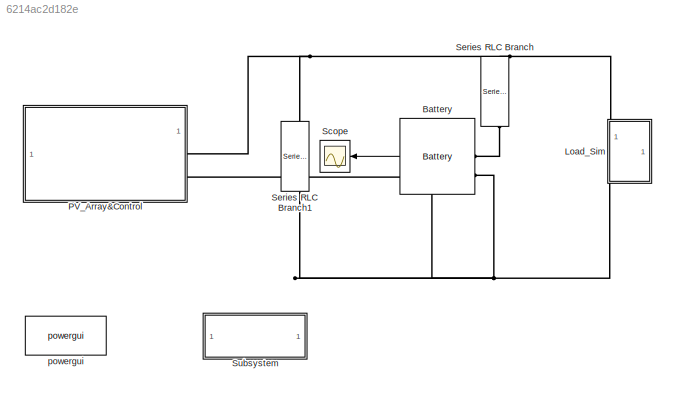
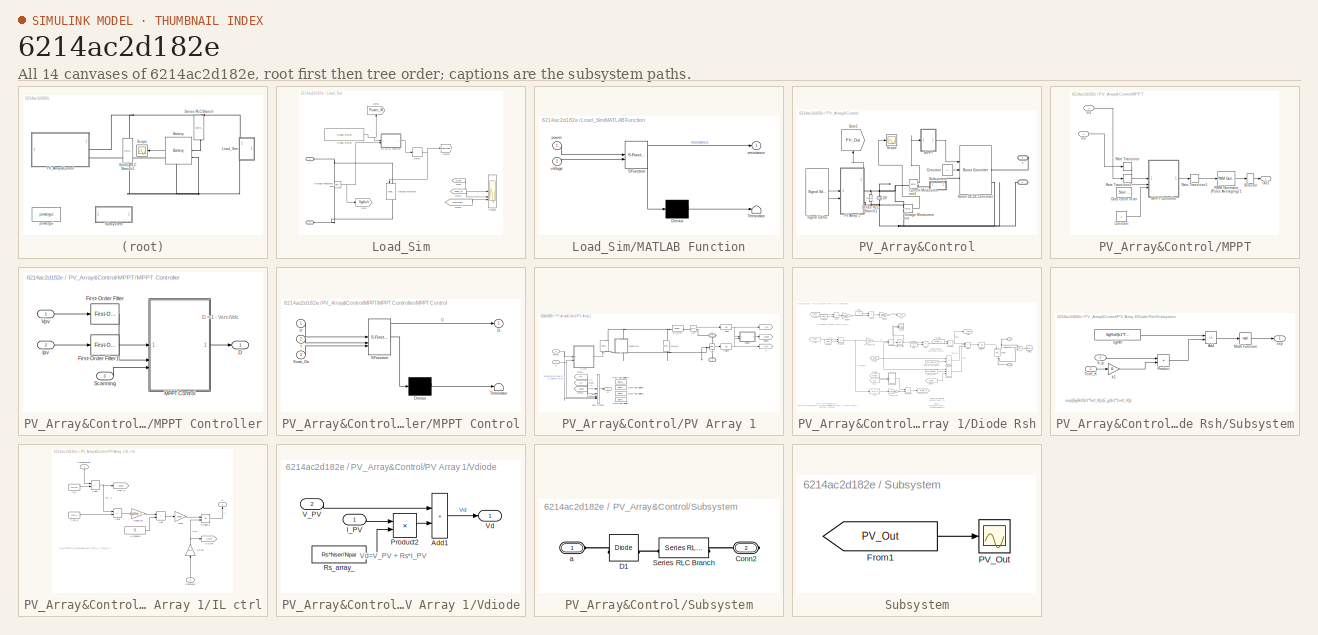
[diagram: thumbnail index - all 14 canvases of the model, root first then tree order]
MODEL slx_6214ac2d182e
KIND model
CONFIG AbsTol = auto
CONFIG EnableMultiTasking = off
CONFIG FixedStep = auto
CONFIG MaxStep = 1e-2
CONFIG MinStep = auto
CONFIG RelTol = 1e-3
CONFIG SampleTimeConstraint = Unconstrained
CONFIG SolverName = VariableStepDiscrete
CONFIG StartTime = 0.0
CONFIG StopTime = 72
BLOCK [Reference] Battery  REF=spsBatteryLib/Battery
  LibrarySourceBlock = sps_lib/Sources/Battery
  SourceBlock = spsBatteryLib/Battery
  SourceType = Battery
BLOCK [SubSystem] Load_Sim
BLOCK [PMIOPort] Load_Sim/+
  Side = Left
BLOCK [PMIOPort] Load_Sim/-  
  Port = 2
  Side = Left
BLOCK [Delay] Load_Sim/Delay
  DelayLength = 1
  InputPortMap = u0
  InputProcessing = Columns as channels (frame based)
BLOCK [From] Load_Sim/From
  GotoTag = SysVolt
BLOCK [From] Load_Sim/From1
  GotoTag = Power_W
BLOCK [From] Load_Sim/From2
  GotoTag = Resistance_Load
BLOCK [Goto] Load_Sim/Goto
  GotoTag = SysVolt
BLOCK [Goto] Load_Sim/Goto1
  GotoTag = Power_W
  NameLocation = right
BLOCK [Goto] Load_Sim/Goto2
  GotoTag = Resistance_Load
BLOCK [SubSystem] Load_Sim/MATLAB Function
  ErrorFcn = Stateflow.Translate.translate
  PermitHierarchicalResolution = ExplicitOnly
  SFBlockType = MATLAB Function
  TreatAsAtomicUnit = on
BLOCK [Demux] Load_Sim/MATLAB Function/ Demux 
  Outputs = 1
BLOCK [S-Function] Load_Sim/MATLAB Function/ SFunction 
  EnableBusSupport = on
  FunctionName = sf_sfun
  PortCounts = [2 2]
  SFcnIsStateOwnerBlock = off
  SFunctionDeploymentMode = off
  Tag = Stateflow S-Function 3
BLOCK [Terminator] Load_Sim/MATLAB Function/ Terminator 
BLOCK [Inport] Load_Sim/MATLAB Function/power
BLOCK [Outport] Load_Sim/MATLAB Function/resistance
BLOCK [Inport] Load_Sim/MATLAB Function/voltage
  Port = 2
BLOCK [Scope] Load_Sim/Scope3
  Floating = off
  NumInputPorts = 3
  ScopeSpecificationString = Simulink.scopes.TimeScopeBlockCfg('CurrentConfiguration', extmgr.ConfigurationSet(extmgr.Configuration('Core','General UI',true),extmgr.Configuration('Core','Source UI',true),extmgr.Configuration('Sources','WiredSimulink',true,'DataLoggingVariableName','ScopeData4'),extmgr.Configuration('Visuals','Time Domain',true,'SerializedDisplays',{struct('MinYLimReal','-3666.66667','MaxYLimReal','33000.00000...<+1578ch>
BLOCK [Reference] Load_Sim/Signal Editor  REF=SignalEditorBlockLib/Signal Editor
  LibrarySourceBlock = simulink/Sources/Signal Editor
  SourceBlock = SignalEditorBlockLib/Signal Editor
  SourceType = SignalEditor
  UserDataPersistent = on
BLOCK [Reference] Load_Sim/Variable Resistor  REF=spsVariableResistorLib/Variable Resistor
  LibrarySourceBlock = sps_lib/Passives/Variable Resistor
  NameLocation = left
  SourceBlock = spsVariableResistorLib/Variable Resistor
  SourceType = Variable Resistor
BLOCK [Reference] Load_Sim/Voltage Measurement  REF=spsVoltageMeasurementLib/Voltage Measurement
  SourceBlock = spsVoltageMeasurementLib/Voltage Measurement
  SourceType = Voltage Measurement
  UserDataPersistent = on
BLOCK [SubSystem] PV_Array&Control
BLOCK [PMIOPort] PV_Array&Control/+
  Side = Right
BLOCK [PMIOPort] PV_Array&Control/-
  Port = 2
  Side = Right
BLOCK [Reference] PV_Array&Control/Boost DC-DC Converter  REF=spsBoostConverterLib/Boost Converter
  Commented = on
  SourceBlock = spsBoostConverterLib/Boost Converter
  SourceType = Boost Converter
BLOCK [Constant] PV_Array&Control/Constant
  Commented = on
  Value = 0
BLOCK [Reference] PV_Array&Control/Current Measurement1  REF=spsCurrentMeasurementLib/Current Measurement
  Commented = on
  SourceBlock = spsCurrentMeasurementLib/Current Measurement
  SourceType = Current Measurement
  UserDataPersistent = on
BLOCK [Reference] PV_Array&Control/D3  REF=spsDiodeLib/Diode
  NameLocation = left
  SourceBlock = spsDiodeLib/Diode
  SourceType = Diode
BLOCK [Goto] PV_Array&Control/Goto1
  GotoTag = PV_Out
  NameLocation = right
  TagVisibility = global
BLOCK [SubSystem] PV_Array&Control/MPPT
  Commented = on
BLOCK [Constant] PV_Array&Control/MPPT/Constant
BLOCK [Reference] PV_Array&Control/MPPT/Duty cycle scan  REF=spsStairGeneratorLib/Stair
Generator
  SourceBlock = spsStairGeneratorLib/Stair\nGenerator
  SourceType = Stair Generator
BLOCK [Inport] PV_Array&Control/MPPT/In1
BLOCK [Inport] PV_Array&Control/MPPT/In2
  Port = 2
BLOCK [SubSystem] PV_Array&Control/MPPT/MPPT Controller
BLOCK [Outport] PV_Array&Control/MPPT/MPPT Controller/D
  OutDataTypeStr = double
  PortDimensions = 1
  VectorParamsAs1DForOutWhenUnconnected = off
BLOCK [Reference] PV_Array&Control/MPPT/MPPT Controller/First-Order Filter  REF=spsFirstOrderFilterLib/First-Order
Filter
  SourceBlock = spsFirstOrderFilterLib/First-Order\nFilter
  SourceType = First-Order Filter
BLOCK [Reference] PV_Array&Control/MPPT/MPPT Controller/First-Order Filter1  REF=spsFirstOrderFilterLib/First-Order
Filter
  SourceBlock = spsFirstOrderFilterLib/First-Order\nFilter
  SourceType = First-Order Filter
BLOCK [Inport] PV_Array&Control/MPPT/MPPT Controller/Ipv
  Port = 2
BLOCK [SubSystem] PV_Array&Control/MPPT/MPPT Controller/MPPT Control
  ErrorFcn = Stateflow.Translate.translate
  NameLocation = top
  PermitHierarchicalResolution = ExplicitOnly
  SFBlockType = MATLAB Function
  TreatAsAtomicUnit = on
BLOCK [Demux] PV_Array&Control/MPPT/MPPT Controller/MPPT Control/ Demux 
  Outputs = 1
BLOCK [S-Function] PV_Array&Control/MPPT/MPPT Controller/MPPT Control/ SFunction 
  EnableBusSupport = on
  FunctionName = sf_sfun
  Parameters = DeltaD_Scan,Dinit,Dmax,Dmin,deltaD
  PortCounts = [3 2]
  SFcnIsStateOwnerBlock = off
  SFunctionDeploymentMode = off
  Tag = Stateflow S-Function 2
BLOCK [Terminator] PV_Array&Control/MPPT/MPPT Controller/MPPT Control/ Terminator 
BLOCK [Outport] PV_Array&Control/MPPT/MPPT Controller/MPPT Control/D
  VectorParamsAs1DForOutWhenUnconnected = off
BLOCK [Inport] PV_Array&Control/MPPT/MPPT Controller/MPPT Control/I
  Port = 2
BLOCK [Inport] PV_Array&Control/MPPT/MPPT Controller/MPPT Control/Scan_On
  Port = 3
BLOCK [Inport] PV_Array&Control/MPPT/MPPT Controller/MPPT Control/V
BLOCK [Inport] PV_Array&Control/MPPT/MPPT Controller/Scanning
  Port = 3
  PortDimensions = 1
BLOCK [Inport] PV_Array&Control/MPPT/MPPT Controller/Vpv
BLOCK [Outport] PV_Array&Control/MPPT/Out1
BLOCK [Reference] PV_Array&Control/MPPT/PWM Generator (Pulse Averaging) 1  REF=spsPWMGeneratorPulseAveragingLib/PWM Generator
(Pulse Averaging)
  SourceBlock = spsPWMGeneratorPulseAveragingLib/PWM Generator\n(Pulse Averaging)
  SourceType = PWM Generator Pulse Averaging
BLOCK [RateTransition] PV_Array&Control/MPPT/Rate Transition
  OutPortSampleTime = 2.5e-05
BLOCK [RateTransition] PV_Array&Control/MPPT/Rate Transition1
  OutPortSampleTime = 5e-06
BLOCK [RateTransition] PV_Array&Control/MPPT/Rate Transition2
  OutPortSampleTime = 2.5e-05
BLOCK [Selector] PV_Array&Control/MPPT/Selector
  IndexOptions = Index vector (dialog)
  Indices = 1
  InputPortWidth = 2
  OutputSizes = 1
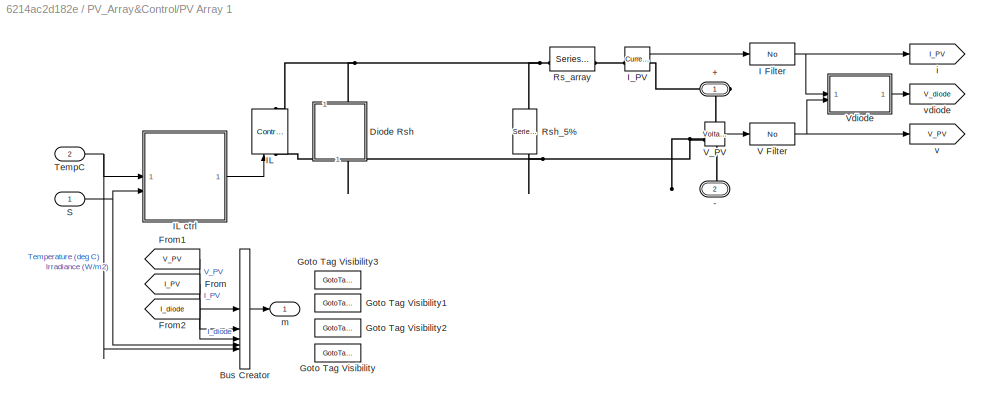
BLOCK [SubSystem] PV_Array&Control/PV Array 1
  AncestorBlock = spsPVArrayLib/PV Array
  CloseFcn = sps_rtmsupport('CloseFcn',gcbh);
  CopyFcn = sps_rtmsupport('CopyFcn',gcbh);
  DeleteFcn = sps_rtmsupport('DeleteFcn',gcbh);
  DialogController = POWERSYS.PowerSysDialog
  LoadFcn = sps_rtmsupport('LoadFcn',gcbh);
  ModelCloseFcn = sps_rtmsupport('ModelCloseFcn',gcbh);
  NameChangeFcn = sps_rtmsupport('NameChangeFcn',gcbh);
  OpenFcn = %assignin('base','PVMaskOpening',1);\n%open_system(gcb,'mask')\n%assignin('base','PVMaskOpening',0);\nsps_rtmsupport('OpenFcn',gcbh, [3 6 7 23]);
  PostSaveFcn = sps_rtmsupport('PostSaveFcn',gcbh);
  PreCopyFcn = sps_rtmsupport('PreCopyFcn',gcbh);
  PreDeleteFcn = sps_rtmsupport('PreDeleteFcn',gcbh);
  PreSaveFcn = sps_rtmsupport('PreSaveFcn',gcbh);
  StartFcn = sps_rtmsupport('StartFcn',gcbh);
  StopFcn = sps_rtmsupport('StopFcn',gcbh);
  UndoDeleteFcn = sps_rtmsupport('UndoDeleteFcn',gcbh);
BLOCK [PMIOPort] PV_Array&Control/PV Array 1/+
  Side = Right
BLOCK [PMIOPort] PV_Array&Control/PV Array 1/-
  Port = 2
  Side = Right
BLOCK [BusCreator] PV_Array&Control/PV Array 1/Bus Creator
  DisplayOption = bar
  InheritFromInputs = on
  Inputs = 5
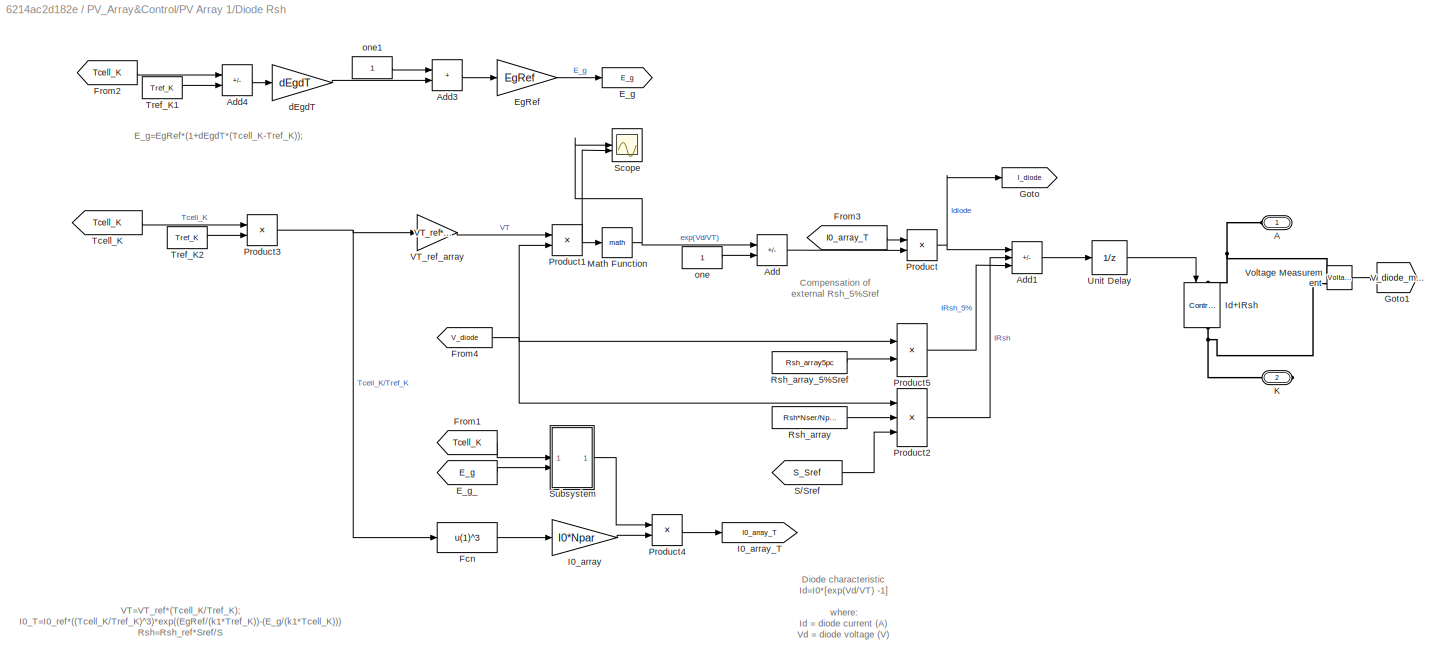
BLOCK [SubSystem] PV_Array&Control/PV Array 1/Diode Rsh
  AncestorBlock = spsPVarrayModel/Discrete Diode Rsh BAL
  NameLocation = right
BLOCK [PMIOPort] PV_Array&Control/PV Array 1/Diode Rsh/A
  Side = Left
BLOCK [Sum] PV_Array&Control/PV Array 1/Diode Rsh/Add
  IconShape = rectangular
  Inputs = +-
BLOCK [Sum] PV_Array&Control/PV Array 1/Diode Rsh/Add1
  IconShape = rectangular
  Inputs = ++-
BLOCK [Sum] PV_Array&Control/PV Array 1/Diode Rsh/Add3
  IconShape = rectangular
BLOCK [Sum] PV_Array&Control/PV Array 1/Diode Rsh/Add4
  IconShape = rectangular
  Inputs = +-
BLOCK [Goto] PV_Array&Control/PV Array 1/Diode Rsh/E_g
  GotoTag = E_g
BLOCK [From] PV_Array&Control/PV Array 1/Diode Rsh/E_g_
  GotoTag = E_g
BLOCK [Gain] PV_Array&Control/PV Array 1/Diode Rsh/EgRef
  Gain = EgRef
BLOCK [Fcn] PV_Array&Control/PV Array 1/Diode Rsh/Fcn
  Expr = u(1)^3
BLOCK [From] PV_Array&Control/PV Array 1/Diode Rsh/From1
  GotoTag = Tcell_K
  TagVisibility = scoped
BLOCK [From] PV_Array&Control/PV Array 1/Diode Rsh/From2
  GotoTag = Tcell_K
  TagVisibility = scoped
BLOCK [From] PV_Array&Control/PV Array 1/Diode Rsh/From3
  GotoTag = I0_array_T
BLOCK [From] PV_Array&Control/PV Array 1/Diode Rsh/From4
  GotoTag = V_diode
  TagVisibility = scoped
BLOCK [Goto] PV_Array&Control/PV Array 1/Diode Rsh/Goto
  GotoTag = I_diode
  TagVisibility = scoped
BLOCK [Goto] PV_Array&Control/PV Array 1/Diode Rsh/Goto1
  GotoTag = V_diode_manual
  TagVisibility = global
BLOCK [Gain] PV_Array&Control/PV Array 1/Diode Rsh/I0_array
  Gain = I0*Npar
BLOCK [Goto] PV_Array&Control/PV Array 1/Diode Rsh/I0_array_T
  GotoTag = I0_array_T
BLOCK [Reference] PV_Array&Control/PV Array 1/Diode Rsh/Id+IRsh  REF=spsControlledCurrentSourceLib/Controlled Current Source
  NameLocation = right
  SourceBlock = spsControlledCurrentSourceLib/Controlled Current Source
  SourceType = Controlled Current Source
BLOCK [PMIOPort] PV_Array&Control/PV Array 1/Diode Rsh/K
  Port = 2
  Side = Right
BLOCK [Math] PV_Array&Control/PV Array 1/Diode Rsh/Math Function
  SignedPower = on
BLOCK [Product] PV_Array&Control/PV Array 1/Diode Rsh/Product
  RndMeth = Zero
BLOCK [Product] PV_Array&Control/PV Array 1/Diode Rsh/Product1
  Inputs = /*
  RndMeth = Zero
BLOCK [Product] PV_Array&Control/PV Array 1/Diode Rsh/Product2
  Inputs = */*
  RndMeth = Zero
BLOCK [Product] PV_Array&Control/PV Array 1/Diode Rsh/Product3
  Inputs = */
  RndMeth = Zero
BLOCK [Product] PV_Array&Control/PV Array 1/Diode Rsh/Product4
  Inputs = **
  RndMeth = Zero
BLOCK [Product] PV_Array&Control/PV Array 1/Diode Rsh/Product5
  Inputs = */
  RndMeth = Zero
BLOCK [Constant] PV_Array&Control/PV Array 1/Diode Rsh/Rsh_array
  Value = Rsh*Nser/Npar
BLOCK [Constant] PV_Array&Control/PV Array 1/Diode Rsh/Rsh_array_5%Sref
  Value = Rsh_array5pc
BLOCK [From] PV_Array&Control/PV Array 1/Diode Rsh/S//Sref
  GotoTag = S_Sref
  TagVisibility = scoped
BLOCK [Scope] PV_Array&Control/PV Array 1/Diode Rsh/Scope
  Floating = off
  NumInputPorts = 2
  ScopeSpecificationString = Simulink.scopes.TimeScopeBlockCfg('CurrentConfiguration', extmgr.ConfigurationSet(extmgr.Configuration('Core','General UI',true),extmgr.Configuration('Core','Source UI',true),extmgr.Configuration('Sources','WiredSimulink',true,'DataLoggingVariableName','ScopeData4'),extmgr.Configuration('Visuals','Time Domain',true,'SerializedDisplays',{struct('MinYLimReal','0.01835','MaxYLimReal','1.29558','YLabe...<+1450ch>
BLOCK [SubSystem] PV_Array&Control/PV Array 1/Diode Rsh/Subsystem
BLOCK [Sum] PV_Array&Control/PV Array 1/Diode Rsh/Subsystem/Add
  IconShape = rectangular
  Inputs = +-
BLOCK [Inport] PV_Array&Control/PV Array 1/Diode Rsh/Subsystem/E_g
  Port = 2
BLOCK [Constant] PV_Array&Control/PV Array 1/Diode Rsh/Subsystem/EgRef
  Value = EgRef/(k1*Tref_K)
BLOCK [Math] PV_Array&Control/PV Array 1/Diode Rsh/Subsystem/Math Function
  SignedPower = on
BLOCK [Product] PV_Array&Control/PV Array 1/Diode Rsh/Subsystem/Product
  Inputs = */
BLOCK [Inport] PV_Array&Control/PV Array 1/Diode Rsh/Subsystem/Tcell_K
BLOCK [Outport] PV_Array&Control/PV Array 1/Diode Rsh/Subsystem/exp
  VectorParamsAs1DForOutWhenUnconnected = off
BLOCK [Gain] PV_Array&Control/PV Array 1/Diode Rsh/Subsystem/k1
  Gain = k1
BLOCK [From] PV_Array&Control/PV Array 1/Diode Rsh/Tcell_K
  GotoTag = Tcell_K
  TagVisibility = scoped
BLOCK [Constant] PV_Array&Control/PV Array 1/Diode Rsh/Tref_K1
  Value = Tref_K
BLOCK [Constant] PV_Array&Control/PV Array 1/Diode Rsh/Tref_K2
  Value = Tref_K
BLOCK [UnitDelay] PV_Array&Control/PV Array 1/Diode Rsh/Unit Delay
  HasFrameUpgradeWarning = on
  SampleTime = Tsf
BLOCK [Gain] PV_Array&Control/PV Array 1/Diode Rsh/VT_ref_array
  Gain = VT_ref*Nser
BLOCK [Reference] PV_Array&Control/PV Array 1/Diode Rsh/Voltage Measurement  REF=spsVoltageMeasurementLib/Voltage Measurement
  LibrarySourceBlock = sps_lib/Sensors and Measurements/Voltage Measurement
  SourceBlock = spsVoltageMeasurementLib/Voltage Measurement
  SourceType = Voltage Measurement
  UserDataPersistent = on
BLOCK [Gain] PV_Array&Control/PV Array 1/Diode Rsh/dEgdT
  Gain = dEgdT
BLOCK [Constant] PV_Array&Control/PV Array 1/Diode Rsh/one
BLOCK [Constant] PV_Array&Control/PV Array 1/Diode Rsh/one1
BLOCK [From] PV_Array&Control/PV Array 1/From
  GotoTag = I_PV
BLOCK [From] PV_Array&Control/PV Array 1/From1
  GotoTag = V_PV
BLOCK [From] PV_Array&Control/PV Array 1/From2
  GotoTag = I_diode
  TagVisibility = scoped
BLOCK [GotoTagVisibility] PV_Array&Control/PV Array 1/Goto Tag Visibility
  GotoTag = S_Sref
BLOCK [GotoTagVisibility] PV_Array&Control/PV Array 1/Goto Tag Visibility1
  GotoTag = I_diode
BLOCK [GotoTagVisibility] PV_Array&Control/PV Array 1/Goto Tag Visibility2
  GotoTag = Tcell_K
BLOCK [GotoTagVisibility] PV_Array&Control/PV Array 1/Goto Tag Visibility3
  GotoTag = V_diode
BLOCK [Reference] PV_Array&Control/PV Array 1/I Filter  REF=spsPVarrayModel/No
  NameLocation = top
  SourceBlock = spsPVarrayModel/No
  SourceType = SubSystem
BLOCK [Reference] PV_Array&Control/PV Array 1/IL  REF=spsControlledCurrentSourceLib/Controlled Current Source
  NameLocation = left
  SourceBlock = spsControlledCurrentSourceLib/Controlled Current Source
  SourceType = Controlled Current Source
BLOCK [SubSystem] PV_Array&Control/PV Array 1/IL ctrl
BLOCK [Constant] PV_Array&Control/PV Array 1/IL ctrl/0_K
  Value = 273.15
BLOCK [Gain] PV_Array&Control/PV Array 1/IL ctrl/1//Sref
  Gain = 1e-3
  NameLocation = right
BLOCK [Sum] PV_Array&Control/PV Array 1/IL ctrl/Add
  IconShape = rectangular
BLOCK [Sum] PV_Array&Control/PV Array 1/IL ctrl/Add2
  IconShape = rectangular
BLOCK [Sum] PV_Array&Control/PV Array 1/IL ctrl/Add3
  IconShape = rectangular
  Inputs = +-
BLOCK [Outport] PV_Array&Control/PV Array 1/IL ctrl/IL
  NameLocation = right
  VectorParamsAs1DForOutWhenUnconnected = off
BLOCK [Constant] PV_Array&Control/PV Array 1/IL ctrl/IL_module
  Value = IL
BLOCK [Inport] PV_Array&Control/PV Array 1/IL ctrl/Irradiance
  NameLocation = right
  Port = 2
BLOCK [Gain] PV_Array&Control/PV Array 1/IL ctrl/Npar
  Gain = Npar
BLOCK [Product] PV_Array&Control/PV Array 1/IL ctrl/Product1
  Inputs = **
  RndMeth = Zero
BLOCK [Goto] PV_Array&Control/PV Array 1/IL ctrl/S//Sref
  GotoTag = S_Sref
  TagVisibility = scoped
BLOCK [Goto] PV_Array&Control/PV Array 1/IL ctrl/Tcell_K
  GotoTag = Tcell_K
  TagVisibility = scoped
BLOCK [Inport] PV_Array&Control/PV Array 1/IL ctrl/Temperature
  NameLocation = right
BLOCK [Constant] PV_Array&Control/PV Array 1/IL ctrl/Tref_K
  Value = Tref_K
BLOCK [Gain] PV_Array&Control/PV Array 1/IL ctrl/alpha_Isc
  Gain = alpha_Isc
BLOCK [Reference] PV_Array&Control/PV Array 1/I_PV  REF=spsCurrentMeasurementLib/Current Measurement
  SourceBlock = spsCurrentMeasurementLib/Current Measurement
  SourceType = Current Measurement
BLOCK [Reference] PV_Array&Control/PV Array 1/Rs_array  REF=spsSeriesRLCBranchLib/Series RLC Branch
  SourceBlock = spsSeriesRLCBranchLib/Series RLC Branch
  SourceType = Series RLC Branch
BLOCK [Reference] PV_Array&Control/PV Array 1/Rsh_5%  REF=spsSeriesRLCBranchLib/Series RLC Branch
  NameLocation = right
  SourceBlock = spsSeriesRLCBranchLib/Series RLC Branch
  SourceType = Series RLC Branch
BLOCK [Inport] PV_Array&Control/PV Array 1/S
BLOCK [Inport] PV_Array&Control/PV Array 1/TempC
  Port = 2
BLOCK [Reference] PV_Array&Control/PV Array 1/V Filter  REF=spsPVarrayModel/No
  SourceBlock = spsPVarrayModel/No
  SourceType = SubSystem
BLOCK [Reference] PV_Array&Control/PV Array 1/V_PV  REF=spsVoltageMeasurementLib/Voltage Measurement
  SourceBlock = spsVoltageMeasurementLib/Voltage Measurement
  SourceType = Voltage Measurement
BLOCK [SubSystem] PV_Array&Control/PV Array 1/Vdiode
BLOCK [Sum] PV_Array&Control/PV Array 1/Vdiode/Add1
  IconShape = rectangular
BLOCK [Inport] PV_Array&Control/PV Array 1/Vdiode/I_PV
BLOCK [Product] PV_Array&Control/PV Array 1/Vdiode/Product2
  Inputs = **
  RndMeth = Zero
BLOCK [Constant] PV_Array&Control/PV Array 1/Vdiode/Rs_array_
  Value = Rs*Nser/Npar
BLOCK [Inport] PV_Array&Control/PV Array 1/Vdiode/V_PV
  Port = 2
BLOCK [Outport] PV_Array&Control/PV Array 1/Vdiode/Vd
  VectorParamsAs1DForOutWhenUnconnected = off
BLOCK [Goto] PV_Array&Control/PV Array 1/i
  GotoTag = I_PV
  NameLocation = top
BLOCK [Outport] PV_Array&Control/PV Array 1/m
  VectorParamsAs1DForOutWhenUnconnected = off
BLOCK [Goto] PV_Array&Control/PV Array 1/v
  GotoTag = V_PV
BLOCK [Goto] PV_Array&Control/PV Array 1/vdiode
  GotoTag = V_diode
  TagVisibility = scoped
BLOCK [Scope] PV_Array&Control/Scope
  Floating = off
  NumInputPorts = 1
  ScopeSpecificationString = Simulink.scopes.TimeScopeBlockCfg('CurrentConfiguration', extmgr.ConfigurationSet(extmgr.Configuration('Core','General UI',true),extmgr.Configuration('Core','Source UI',true),extmgr.Configuration('Sources','WiredSimulink',true,'DataLoggingVariableName','ScopeData1'),extmgr.Configuration('Visuals','Time Domain',true,'SerializedDisplays',{struct('MinYLimReal','-19.18128','MaxYLimReal','172.63155','Y...<+1443ch>
BLOCK [Reference] PV_Array&Control/Series RLC Branch1  REF=spsSeriesRLCBranchLib/Series RLC Branch
  NameLocation = right
  SourceBlock = spsSeriesRLCBranchLib/Series RLC Branch
  SourceType = Series RLC Branch
BLOCK [Reference] PV_Array&Control/Signal Editor  REF=SignalEditorBlockLib/Signal Editor
  LibrarySourceBlock = simulink/Sources/Signal Editor
  SourceBlock = SignalEditorBlockLib/Signal Editor
  SourceType = SignalEditor
  UserDataPersistent = on
BLOCK [SubSystem] PV_Array&Control/Subsystem
  Commented = on
BLOCK [PMIOPort] PV_Array&Control/Subsystem/Conn2
  Port = 2
  Side = Right
BLOCK [Reference] PV_Array&Control/Subsystem/D1  REF=spsDiodeLib/Diode
  SourceBlock = spsDiodeLib/Diode
  SourceType = Diode
BLOCK [Reference] PV_Array&Control/Subsystem/Series RLC Branch  REF=spsSeriesRLCBranchLib/Series RLC Branch
  SourceBlock = spsSeriesRLCBranchLib/Series RLC Branch
  SourceType = Series RLC Branch
BLOCK [PMIOPort] PV_Array&Control/Subsystem/a
  Side = Left
BLOCK [Reference] PV_Array&Control/Voltage Measurement  REF=spsVoltageMeasurementLib/Voltage Measurement
  SourceBlock = spsVoltageMeasurementLib/Voltage Measurement
  SourceType = Voltage Measurement
  UserDataPersistent = on
BLOCK [Scope] Scope
  Floating = off
  NameLocation = top
  NumInputPorts = 1
  ScopeSpecificationString = Simulink.scopes.TimeScopeBlockCfg('CurrentConfiguration', extmgr.ConfigurationSet(extmgr.Configuration('Core','General UI',true),extmgr.Configuration('Core','Source UI',true),extmgr.Configuration('Sources','WiredSimulink',true,'DataLoggingVariableName','ScopeData1'),extmgr.Configuration('Visuals','Time Domain',true,'SerializedDisplays',{struct('MinYLimReal','-67.25353','MaxYLimReal','607.7716','YL...<+1451ch>
BLOCK [Reference] Series RLC Branch  REF=spsSeriesRLCBranchLib/Series RLC Branch
  NameLocation = right
  SourceBlock = spsSeriesRLCBranchLib/Series RLC Branch
  SourceType = Series RLC Branch
BLOCK [Reference] Series RLC Branch1  REF=spsSeriesRLCBranchLib/Series RLC Branch
  NameLocation = right
  SourceBlock = spsSeriesRLCBranchLib/Series RLC Branch
  SourceType = Series RLC Branch
BLOCK [SubSystem] Subsystem
BLOCK [From] Subsystem/From1
  GotoTag = PV_Out
  TagVisibility = global
BLOCK [Scope] Subsystem/PV_Out
  Floating = off
  NumInputPorts = 1
  ScopeSpecificationString = Simulink.scopes.TimeScopeBlockCfg('CurrentConfiguration', extmgr.ConfigurationSet(extmgr.Configuration('Core','General UI',true),extmgr.Configuration('Core','Source UI',true),extmgr.Configuration('Sources','WiredSimulink',true),extmgr.Configuration('Visuals','Time Domain',true,'SerializedDisplays',{struct('MinYLimReal','-125.00085','MaxYLimReal','1125.00009','YLabelReal','','MinYLimMag',' 0.00000'...<+1767ch>
BLOCK [Reference] powergui  REF=sps_lib/powergui
  LibrarySourceBlock = sps_lib/powergui
  Priority = 1
  SourceBlock = sps_lib/powergui
  SourceType = PSB option menu block
ANNOTATION PV_Array&Control/MPPT/MPPT Controller: D = 1 - Vsrc/Vdc
ANNOTATION PV_Array&Control/PV Array 1/Diode Rsh: Compensation of external Rsh_5%Sref
ANNOTATION PV_Array&Control/PV Array 1/Diode Rsh: Diode characteristic Id=I0*[exp(Vd/VT) -1] where: Id = diode current (A) Vd = diode voltage (V) I0 = diode saturation current (A) VT = temperature voltage = k*Tcell_K/q*nI*Ncell*Nser Tcell_K = cell temperature (K), k = Boltzman constant = 1.3806e-23 J.K^-1 q = electron charge = 1.6022e-19 C nI = diode ideality factor Ncell= number of series-connected cells per module Nser = number of series-connec...<+22ch>
ANNOTATION PV_Array&Control/PV Array 1/Diode Rsh: E_g=EgRef*(1+dEgdT*(Tcell_K-Tref_K));
ANNOTATION PV_Array&Control/PV Array 1/Diode Rsh: VT=VT_ref*(Tcell_K/Tref_K); I0_T=I0_ref*((Tcell_K/Tref_K)^3)*exp((EgRef/(k1*Tref_K))-(E_g/(k1*Tcell_K))) Rsh=Rsh_ref*Sref/S
ANNOTATION PV_Array&Control/PV Array 1/Diode Rsh/Subsystem: exp((EgRef/(k1*Tref_K))-(E_g/(k1*Tcell_K)))
ANNOTATION PV_Array&Control/PV Array 1/IL ctrl: IL=S/Sref*(IL_ref+alpha_isc*(Tcell_K-Tref_K));
ANNOTATION PV_Array&Control/PV Array 1/Vdiode: Vd=V_PV + Rs*I_PV
LINE Battery:1 -> Scope:1
NET Load_Sim/Delay:1 -> Load_Sim/Goto2:1, Load_Sim/Variable Resistor:1
LINE Load_Sim/From1:1 -> Load_Sim/Scope3:2
LINE Load_Sim/From2:1 -> Load_Sim/Scope3:3
LINE Load_Sim/From:1 -> Load_Sim/Scope3:1
LINE Load_Sim/MATLAB Function:1 -> Load_Sim/Delay:1
NET Load_Sim/Signal Editor:1 -> Load_Sim/Goto1:1, Load_Sim/MATLAB Function:1
NET Load_Sim/Voltage Measurement:1 -> Load_Sim/Goto:1, Load_Sim/MATLAB Function:2
LINE PV_Array&Control/Constant:1 -> PV_Array&Control/Boost DC-DC Converter:2
LINE PV_Array&Control/Current Measurement1:1 -> PV_Array&Control/MPPT:1
LINE PV_Array&Control/MPPT/Constant:1 -> PV_Array&Control/MPPT/MPPT Controller:3
LINE PV_Array&Control/MPPT/In1:1 -> PV_Array&Control/MPPT/Rate Transition2:1
LINE PV_Array&Control/MPPT/In2:1 -> PV_Array&Control/MPPT/Rate Transition:1
LINE PV_Array&Control/MPPT/MPPT Controller/First-Order Filter1:1 -> PV_Array&Control/MPPT/MPPT Controller/MPPT Control:2
LINE PV_Array&Control/MPPT/MPPT Controller/First-Order Filter:1 -> PV_Array&Control/MPPT/MPPT Controller/MPPT Control:1
LINE PV_Array&Control/MPPT/MPPT Controller/Ipv:1 -> PV_Array&Control/MPPT/MPPT Controller/First-Order Filter1:1
LINE PV_Array&Control/MPPT/MPPT Controller/MPPT Control:1 -> PV_Array&Control/MPPT/MPPT Controller/D:1
LINE PV_Array&Control/MPPT/MPPT Controller/Scanning:1 -> PV_Array&Control/MPPT/MPPT Controller/MPPT Control:3
LINE PV_Array&Control/MPPT/MPPT Controller/Vpv:1 -> PV_Array&Control/MPPT/MPPT Controller/First-Order Filter:1
LINE PV_Array&Control/MPPT/MPPT Controller:1 -> PV_Array&Control/MPPT/Rate Transition1:1
LINE PV_Array&Control/MPPT/PWM Generator (Pulse Averaging) 1:1 -> PV_Array&Control/MPPT/Selector:1
LINE PV_Array&Control/MPPT/Rate Transition1:1 -> PV_Array&Control/MPPT/PWM Generator (Pulse Averaging) 1:1
LINE PV_Array&Control/MPPT/Rate Transition2:1 -> PV_Array&Control/MPPT/MPPT Controller:2
LINE PV_Array&Control/MPPT/Rate Transition:1 -> PV_Array&Control/MPPT/MPPT Controller:1
LINE PV_Array&Control/MPPT/Selector:1 -> PV_Array&Control/MPPT/Out1:1
LINE PV_Array&Control/MPPT:1 -> PV_Array&Control/Boost DC-DC Converter:1
LINE PV_Array&Control/PV Array 1:1 -> PV_Array&Control/Goto1:1
LINE PV_Array&Control/Signal Editor:1 -> PV_Array&Control/PV Array 1:1
LINE PV_Array&Control/Signal Editor:2 -> PV_Array&Control/PV Array 1:2
LINE PV_Array&Control/Voltage Measurement:1 -> PV_Array&Control/Scope:1
LINE Subsystem/From1:1 -> Subsystem/PV_Out:1
PLINE Battery:LConn1 -- Series RLC Branch:LConn1
PNET net1: Battery:LConn2 -- Load_Sim:LConn2 -- PV_Array&Control:RConn2 -- Series RLC Branch1:LConn1
PNET net2: Load_Sim/+:RConn1 -- Load_Sim/Variable Resistor:LConn1 -- Load_Sim/Voltage Measurement:LConn1
PNET net3: Load_Sim/-  :RConn1 -- Load_Sim/Variable Resistor:RConn1 -- Load_Sim/Voltage Measurement:LConn2
PNET net4: Load_Sim:LConn1 -- PV_Array&Control:RConn1 -- Series RLC Branch1:RConn1 -- Series RLC Branch:RConn1
PLINE PV_Array&Control/+:RConn1 -- PV_Array&Control/Boost DC-DC Converter:RConn1
PNET net5: PV_Array&Control/-:RConn1 -- PV_Array&Control/Boost DC-DC Converter:RConn2 -- PV_Array&Control/D3:LConn1 -- PV_Array&Control/PV Array 1:RConn2 -- PV_Array&Control/Series RLC Branch1:LConn1 -- PV_Array&Control/Voltage Measurement:LConn2
PLINE PV_Array&Control/Boost DC-DC Converter:LConn1 -- PV_Array&Control/Subsystem:RConn1
PNET net6: PV_Array&Control/Current Measurement1:LConn1 -- PV_Array&Control/D3:RConn1 -- PV_Array&Control/PV Array 1:RConn1 -- PV_Array&Control/Series RLC Branch1:RConn1 -- PV_Array&Control/Voltage Measurement:LConn1
PLINE PV_Array&Control/Current Measurement1:RConn1 -- PV_Array&Control/Subsystem:LConn1
PLINE PV_Array&Control/Subsystem/Conn2:RConn1 -- PV_Array&Control/Subsystem/Series RLC Branch:RConn1
PLINE PV_Array&Control/Subsystem/D1:LConn1 -- PV_Array&Control/Subsystem/a:RConn1
PLINE PV_Array&Control/Subsystem/D1:RConn1 -- PV_Array&Control/Subsystem/Series RLC Branch:LConn1
note: NET lines group one-source signal fan-out (src -> all destinations, sorted); 1:1 wires keep LINE; PNET lines group multi-terminal physical nets as a canonical sorted terminal list (undirected conserving connections); 2-terminal nets keep the pairwise PLINE form
CHART PV_Array&Control/MPPT/MPPT
Controller/MPPT Control states=1 transitions=1
  STATE_LABEL 'eML_blk_kernel()'
  STATE_LABEL 'SCRIPT:\nfunction D   = PandO(V, I, Dmax, Dmin, deltaD, Dinit, Scan_On, DeltaD_Scan)\n\n% MPPT controller based on the Perturb & Observe algorithm.\n\n% D output = Duty cycle of the boost converter (value between 0 and 1)\n% V input = PV array terminal voltage (V)\n% I input = PV array current (A)\n% D = 1 - Vinput/Voutput (increasing D decrease Vin)\n\npersistent Vold Pold Dold Scan_On_Old Pmax D_Pmax V_Pm...<+944ch>'
CHART Load_Sim/MATLAB Function states=1 transitions=1
  STATE_LABEL 'eML_blk_kernel()'
  STATE_LABEL 'SCRIPT:\nfunction resistance = fcn(power,voltage)\n\nresistance = (voltage^2)/power;\n'
CHART  states=0 transitions=0
CHART  states=0 transitions=0
